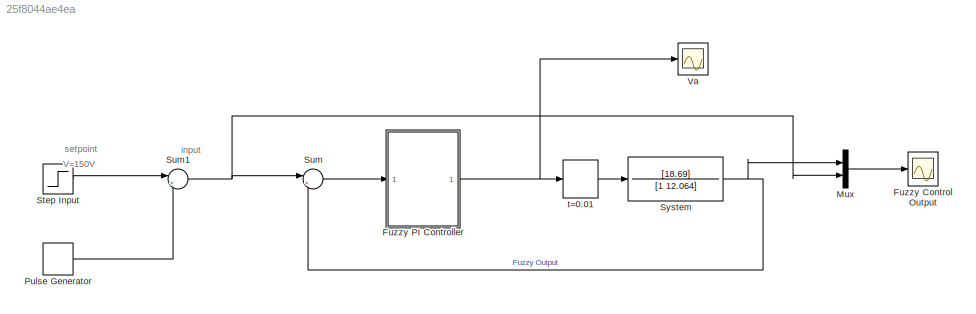
MODEL slx_25f8044ae4ea
KIND model
CONFIG AbsTol = auto
CONFIG EnableMultiTasking = off
CONFIG FixedStep = auto
CONFIG MaxStep = auto
CONFIG MinStep = auto
CONFIG RelTol = 1e-3
CONFIG SampleTimeConstraint = Unconstrained
CONFIG SolverName = VariableStepAuto
CONFIG StartTime = 0.0
CONFIG StopTime = 40.0
BLOCK [Scope] Fuzzy Control Output
  Floating = off
  NumInputPorts = 1
  ScopeSpecificationString = Simulink.scopes.TimeScopeBlockCfg('CurrentConfiguration', extmgr.ConfigurationSet(extmgr.Configuration('Core','General UI',true,'FigureColor',[1 1 1]),extmgr.Configuration('Core','Source UI',true),extmgr.Configuration('Sources','WiredSimulink',true,'DataLogging',true,'DataLoggingVariableName','ScopeData1','DataLoggingSaveFormat','StructureWithTime','DataLoggingDecimation','1','DataLoggingDecimateD...<+2383ch>
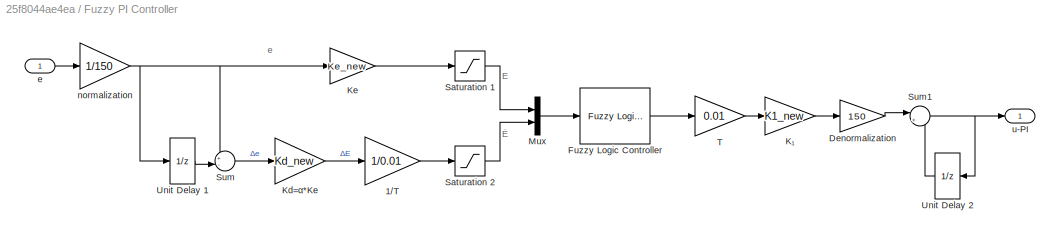
BLOCK [SubSystem] Fuzzy PI Controller
BLOCK [Gain] Fuzzy PI Controller/1//T
  Gain = 1/0.01
  OutDataTypeStr = Inherit: Same as input
  ParamDataTypeStr = Inherit: Same as input
  SaturateOnIntegerOverflow = on
BLOCK [Gain] Fuzzy PI Controller/Denormalization
  Gain = 150
  OutDataTypeStr = Inherit: Same as input
  ParamDataTypeStr = Inherit: Same as input
  SaturateOnIntegerOverflow = on
BLOCK [Reference] Fuzzy PI Controller/Fuzzy Logic Controller  REF=fuzblock/Fuzzy Logic   (lib defined in mdl_858b3b3e7478)
Controller
  SourceBlock = fuzblock/Fuzzy Logic \nController
  SourceType = Fuzzy Inference System
BLOCK [Gain] Fuzzy PI Controller/Kd=α*Ke
  Gain = Kd_new
  OutDataTypeStr = Inherit: Same as input
  ParamDataTypeStr = Inherit: Same as input
  SaturateOnIntegerOverflow = on
BLOCK [Gain] Fuzzy PI Controller/Ke
  Gain = Ke_new
  OutDataTypeStr = Inherit: Same as input
  ParamDataTypeStr = Inherit: Same as input
  SaturateOnIntegerOverflow = on
BLOCK [Gain] Fuzzy PI Controller/K₁
  Gain = K1_new
  OutDataTypeStr = Inherit: Same as input
  ParamDataTypeStr = Inherit: Same as input
  SaturateOnIntegerOverflow = on
BLOCK [Mux] Fuzzy PI Controller/Mux
  DisplayOption = bar
  Inputs = 2
BLOCK [Saturate] Fuzzy PI Controller/Saturation 1
  LowerLimit = -1
  UpperLimit = 1
BLOCK [Saturate] Fuzzy PI Controller/Saturation 2
  LowerLimit = -1
  UpperLimit = 1
BLOCK [Sum] Fuzzy PI Controller/Sum
  Inputs = +-|
  SaturateOnIntegerOverflow = on
BLOCK [Sum] Fuzzy PI Controller/Sum1
  Inputs = |++
  SaturateOnIntegerOverflow = on
BLOCK [Gain] Fuzzy PI Controller/T
  Gain = 0.01
  OutDataTypeStr = Inherit: Same as input
  ParamDataTypeStr = Inherit: Same as input
  SaturateOnIntegerOverflow = on
BLOCK [UnitDelay] Fuzzy PI Controller/Unit Delay 1
  HasFrameUpgradeWarning = on
  SampleTime = 0.01
BLOCK [UnitDelay] Fuzzy PI Controller/Unit Delay 2
  HasFrameUpgradeWarning = on
  SampleTime = 0.01
BLOCK [Inport] Fuzzy PI Controller/e
BLOCK [Gain] Fuzzy PI Controller/normalization
  Gain = 1/150
  OutDataTypeStr = Inherit: Same as input
  ParamDataTypeStr = Inherit: Same as input
  SaturateOnIntegerOverflow = on
BLOCK [Outport] Fuzzy PI Controller/u-PI
  VectorParamsAs1DForOutWhenUnconnected = off
BLOCK [Mux] Mux
  DisplayOption = bar
  Inputs = 2
BLOCK [DiscretePulseGenerator] Pulse Generator
  Amplitude = 50
  Period = 20
  PhaseDelay = -90
  PulseType = Time based
  PulseWidth = 50
BLOCK [Step] Step Input 
  After = wmax
  SampleTime = 0.1
  Time = 0
BLOCK [Sum] Sum
  Inputs = |+-
  SaturateOnIntegerOverflow = on
BLOCK [Sum] Sum1
  Inputs = |+-
  SaturateOnIntegerOverflow = on
BLOCK [TransferFcn] System
  Denominator = [1 12.064]
  Numerator = [18.69]
BLOCK [Scope] Va  
  Floating = off
  NumInputPorts = 1
  ScopeSpecificationString = Simulink.scopes.TimeScopeBlockCfg('CurrentConfiguration', extmgr.ConfigurationSet(extmgr.Configuration('Core','General UI',true,'FigureColor',[1 1 1]),extmgr.Configuration('Core','Source UI',true),extmgr.Configuration('Sources','WiredSimulink',true,'DataLogging',true,'DataLoggingSaveFormat','StructureWithTime','DataLoggingLimitDataPoints',true,'DataLoggingDecimation','1','DataLoggingDecimateData',...<+1996ch>
BLOCK [ZeroOrderHold] t=0.01
  SampleTime = 0.01
ANNOTATION (root): V=150V
ANNOTATION (root): setpoint
ANNOTATION (root): input
ANNOTATION Fuzzy PI Controller: E
ANNOTATION Fuzzy PI Controller: e
ANNOTATION Fuzzy PI Controller: Ė
LINE Fuzzy PI Controller/1//T:1 -> Fuzzy PI Controller/Saturation 2:1
LINE Fuzzy PI Controller/Denormalization:1 -> Fuzzy PI Controller/Sum1:1
LINE Fuzzy PI Controller/Fuzzy Logic Controller:1 -> Fuzzy PI Controller/T:1
LINE Fuzzy PI Controller/Kd=α*Ke:1 -> Fuzzy PI Controller/1//T:1
LINE Fuzzy PI Controller/Ke:1 -> Fuzzy PI Controller/Saturation 1:1
LINE Fuzzy PI Controller/K₁:1 -> Fuzzy PI Controller/Denormalization:1
LINE Fuzzy PI Controller/Mux:1 -> Fuzzy PI Controller/Fuzzy Logic Controller:1
LINE Fuzzy PI Controller/Saturation 1:1 -> Fuzzy PI Controller/Mux:1
LINE Fuzzy PI Controller/Saturation 2:1 -> Fuzzy PI Controller/Mux:2
NET Fuzzy PI Controller/Sum1:1 -> Fuzzy PI Controller/Unit Delay 2:1, Fuzzy PI Controller/u-PI:1
LINE Fuzzy PI Controller/Sum:1 -> Fuzzy PI Controller/Kd=α*Ke:1
LINE Fuzzy PI Controller/T:1 -> Fuzzy PI Controller/K₁:1
LINE Fuzzy PI Controller/Unit Delay 1:1 -> Fuzzy PI Controller/Sum:2
LINE Fuzzy PI Controller/Unit Delay 2:1 -> Fuzzy PI Controller/Sum1:2
LINE Fuzzy PI Controller/e:1 -> Fuzzy PI Controller/normalization:1
NET Fuzzy PI Controller/normalization:1 -> Fuzzy PI Controller/Ke:1, Fuzzy PI Controller/Sum:1, Fuzzy PI Controller/Unit Delay 1:1
NET Fuzzy PI Controller:1 -> Va  :1, t=0.01:1
LINE Mux:1 -> Fuzzy Control Output:1
LINE Pulse Generator:1 -> Sum1:2
LINE Step Input :1 -> Sum1:1
NET Sum1:1 -> Mux:2, Sum:1
LINE Sum:1 -> Fuzzy PI Controller:1
NET System:1 -> Mux:1, Sum:2
LINE t=0.01:1 -> System:1
note: NET lines group one-source signal fan-out (src -> all destinations, sorted); 1:1 wires keep LINE
